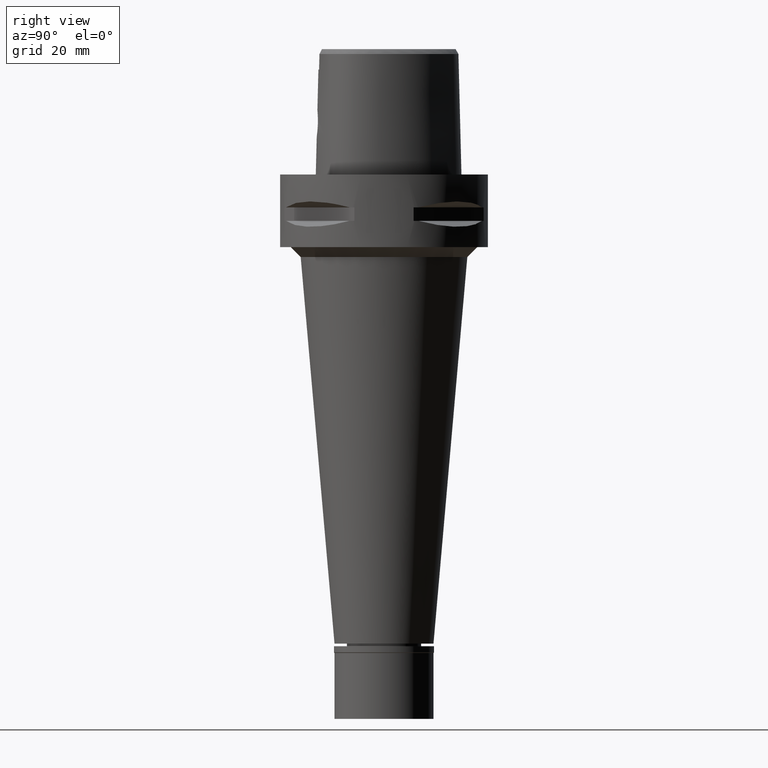
[diagram: clean part render]
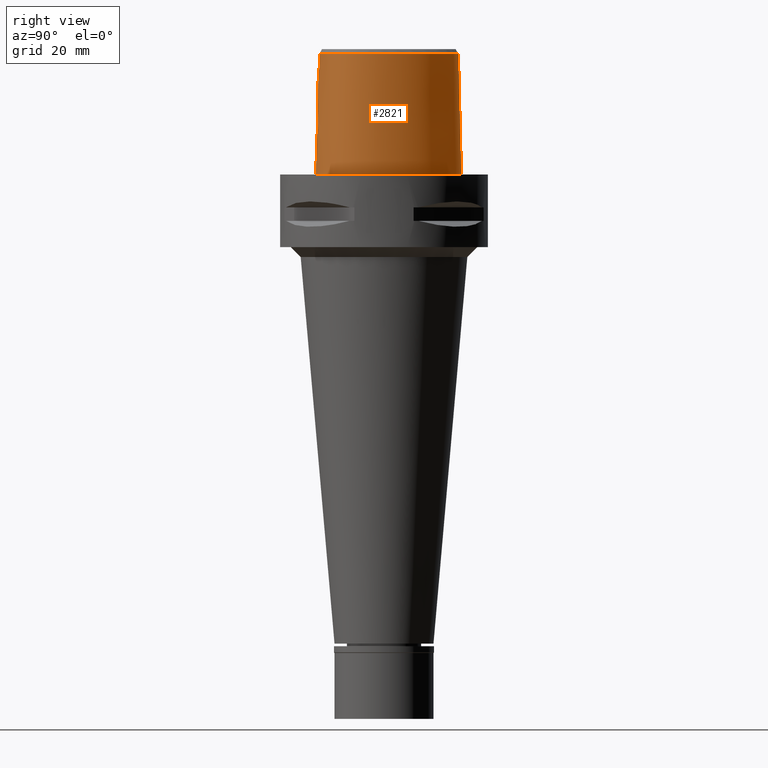
[diagram: same view with one face highlighted and labeled with its STEP entity id]
A machine part, right view. The second image highlights one B-rep face of the part: STEP entity #2821.
In plain terms, the highlighted face is a freeform B-spline surface patch.
Its self-contained STEP definition (entity closure, byte-faithful):
#28 = CARTESIAN_POINT ( 'NONE',  ( 3.346839698137018093, -20.07044986577229650, 17.78445641054263859 ) ) ;
#47 = CARTESIAN_POINT ( 'NONE',  ( 2.360818685576765663, -20.12553152717674010, 18.79091723954073601 ) ) ;
#85 = CARTESIAN_POINT ( 'NONE',  ( 2.041042029990999821E-08, -19.88004246002000031, 31.80000004972000127 ) ) ;
#132 = CARTESIAN_POINT ( 'NONE',  ( 21.31039837231000078, -4.105938496789999448, 37.25231677973999922 ) ) ;
#160 = CARTESIAN_POINT ( 'NONE',  ( 18.35112157715999714, -13.96357039244000120, 11.93048053729999936 ) ) ;
#190 = CARTESIAN_POINT ( 'NONE',  ( 20.76670354688000231, 4.663413653178999141, -0.7304375839165999640 ) ) ;
#210 = CARTESIAN_POINT ( 'NONE',  ( 3.671249151389730514, -19.60525176641679579, 34.94790639287000289 ) ) ;
#213 = CARTESIAN_POINT ( 'NONE',  ( 20.65947761822000217, -8.729764392869000744, 37.25231677973999922 ) ) ;
#236 = CARTESIAN_POINT ( 'NONE',  ( 0.5662264631355999889, 22.56729423624999953, 37.25231677973999922 ) ) ;
#245 = EDGE_CURVE ( 'NONE', #2196, #4910, #4012, .T. ) ;
#264 = CARTESIAN_POINT ( 'NONE',  ( 7.300578979383329781, -19.07170738130555421, 36.52186680739951896 ) ) ;
#274 = CARTESIAN_POINT ( 'NONE',  ( 2.564517726975846568, 23.29328124999400629, 2.743031496388326218E-14 ) ) ;
#284 = CARTESIAN_POINT ( 'NONE',  ( 2.282426779291145458, -20.29697268062908577, 12.15178042133221048 ) ) ;
#286 = CARTESIAN_POINT ( 'NONE',  ( 4.868968453709000777, 21.95285545618000000, 24.59139865852000284 ) ) ;
#296 = CARTESIAN_POINT ( 'NONE',  ( 16.95889172594134564, -15.67838867187557028, 2.743031496388326218E-14 ) ) ;
#305 = EDGE_CURVE ( 'NONE', #4311, #4441, #1322, .T. ) ;
#308 = CARTESIAN_POINT ( 'NONE',  ( 3.047166273135561099, -20.22275119218791062, 12.81895386053285613 ) ) ;
#309 = CARTESIAN_POINT ( 'NONE',  ( 13.93560872661999817, 15.24203796723999993, 24.59139865852000284 ) ) ;
#329 = ORIENTED_EDGE ( 'NONE', *, *, #1233, .F. ) ;
#336 = CARTESIAN_POINT ( 'NONE',  ( 7.099337800077000438, 20.50831394749000225, 37.25231677973999922 ) ) ;
#359 = B_SPLINE_CURVE_WITH_KNOTS ( 'NONE', 3,
 ( #1836, #4971, #5026, #690, #5046, #1817, #1061, #4553, #1860, #1462, #3392, #4947, #1509, #3846, #284, #3463, #4606, #1437, #2272, #3016, #4252, #1037, #2990, #4180, #308, #742, #1086, #669, #2248, #4532, #2628, #2575, #2301, #3822, #3869, #3441, #360, #2227, #5001, #1487, #1106, #2651, #4227, #713, #1891, #4356, #1224, #2705, #2782, #2011, #1586, #2418, #3585, #383, #3539, #873, #28, #3990, #1967, #2323, #845, #4280, #487, #2727, #1177, #820, #2044, #3147, #4378, #4302, #47, #2396, #1153, #767, #4710, #3891, #4330, #1198, #2376, #790, #1939, #2347 ),
 .UNSPECIFIED., .F., .F.,
 ( 4, 2, 2, 1, 1, 1, 2, 2, 2, 2, 2, 1, 1, 2, 2, 2, 2, 1, 1, 2, 2, 2, 2, 1, 2, 2, 2, 2, 1, 1, 1, 2, 2, 2, 2, 2, 1, 1, 2, 2, 2, 1, 2, 2, 2, 2, 2, 4 ),
 ( 0.0000000000000000000, 0.06249999999999680811, 0.09374999999999525380, 0.1093749999999945044, 0.1171874999999941436, 0.1210937499999939770, 0.1230468749999939909, 0.1249999999999940048, 0.1874999999999988620, 0.2187500000000011380, 0.2343750000000023315, 0.2421875000000029143, 0.2460937500000032196, 0.2480468750000034972, 0.2500000000000037748, 0.3125000000000161537, 0.3437500000000225375, 0.3593750000000257017, 0.3671875000000273115, 0.3710937500000281442, 0.3750000000000289213, 0.4375000000000430211, 0.4687500000000503486, 0.4843750000000539568, 0.4921875000000559552, 0.5000000000000579536, 0.5625000000000732747, 0.5937500000000809353, 0.6093750000000843769, 0.6171875000000860423, 0.6210937500000864864, 0.6230468750000863754, 0.6250000000000862643, 0.6875000000000813793, 0.7187500000000788258, 0.7343750000000773825, 0.7421875000000767164, 0.7460937500000764944, 0.7480468750000761613, 0.7500000000000758282, 0.7812500000000663913, 0.7968750000000615064, 0.8046875000000591749, 0.8125000000000567324, 0.8437500000000472955, 0.8593750000000425215, 0.8750000000000376366, 1.000000000000000000 ),
 .UNSPECIFIED. ) ;
#360 = CARTESIAN_POINT ( 'NONE',  ( 4.002668943114965572, -20.07400334792053087, 14.86854796123505729 ) ) ;
#383 = CARTESIAN_POINT ( 'NONE',  ( 3.745542813155543715, -20.04795422077785005, 17.04060065017903014 ) ) ;
#396 = EDGE_CURVE ( 'NONE', #4910, #4441, #1459, .T. ) ;
#463 = CARTESIAN_POINT ( 'NONE',  ( -0.6779734145187998884, -20.37023488104000180, 11.93048053729999936 ) ) ;
#487 = CARTESIAN_POINT ( 'NONE',  ( 2.915472835977094945, -20.09569895789859473, 18.31126718064890113 ) ) ;
#523 = CARTESIAN_POINT ( 'NONE',  ( 20.46725048685000203, 4.555493664739000081, 11.93048053729999936 ) ) ;
#546 = CARTESIAN_POINT ( 'NONE',  ( 21.26836746628999819, -8.910752260624999366, 11.93048053729999936 ) ) ;
#553 = VECTOR ( 'NONE', #948, 1000.000000000000114 ) ;
#573 = B_SPLINE_SURFACE_WITH_KNOTS ( 'NONE', 3, 3, ( 
 ( #4362, #463, #2022, #1643 ),
 ( #3647, #3341, #3267, #3751 ),
 ( #2482, #1668, #2181, #600 ),
 ( #3320, #3296, #4080, #4112 ),
 ( #2839, #1017, #2870, #1312 ),
 ( #624, #2099, #4511, #4436 ),
 ( #4483, #1283, #4408, #3674 ),
 ( #4459, #160, #961, #939 ),
 ( #1746, #3237, #4135, #4052 ),
 ( #2158, #911, #1720, #1364 ),
 ( #4900, #1769, #4854, #992 ),
 ( #1391, #546, #3730, #213 ),
 ( #1340, #2943, #574, #2556 ),
 ( #2133, #4029, #2459, #132 ),
 ( #4798, #2078, #2895, #2505 ),
 ( #190, #523, #1692, #3705 ),
 ( #4877, #4826, #2915, #2533 ),
 ( #4555, #2577, #309, #744 ),
 ( #2604, #1063, #2653, #4535 ),
 ( #5003, #1088, #1893, #336 ),
 ( #4608, #1818, #286, #2303 ),
 ( #3069, #4182, #1795, #4255 ),
 ( #3394, #1837, #3824, #236 ),
 ( #4950, #647, #4157, #671 ),
 ( #3370, #1489, #692, #715 ) ),
 .UNSPECIFIED., .F., .F., .F.,
 ( 4, 1, 1, 1, 1, 1, 1, 1, 1, 1, 1, 1, 1, 1, 1, 1, 1, 1, 1, 1, 1, 1, 4 ),
 ( 4, 4 ),
 ( -0.008985960173571999957, 0.0000000000000000000, 0.08333333333337000770, 0.1666666666667000196, 0.2083333333333000081, 0.2500000000000000000, 0.2916666666666999919, 0.3124999999998999689, 0.3333333333332000326, 0.3541666666666000163, 0.3749999999998999689, 0.4166666666666000163, 0.4583333333332000326, 0.4999999999998999689, 0.5833333333331000015, 0.6666666666664999852, 0.7499999999998000488, 0.8333333333329999704, 0.8749999999997000177, 0.9166666666664000651, 0.9583333333329999704, 1.000000000000000000, 1.011710456763000199 ),
 ( 3.722089469971000116E-09, 0.9999998101735000366 ),
 .UNSPECIFIED. ) ;
#574 = CARTESIAN_POINT ( 'NONE',  ( 21.44619304418999661, -6.759806566834000385, 24.59139865852000284 ) ) ;
#600 = CARTESIAN_POINT ( 'NONE',  ( 1.836480386888999838, -19.76356528378999755, 37.25231677973999922 ) ) ;
#624 = CARTESIAN_POINT ( 'NONE',  ( 14.68244497000999971, -17.23001772821000088, -0.7304375839165999640 ) ) ;
#647 = CARTESIAN_POINT ( 'NONE',  ( -0.4685451983312999835, 23.16976078516999848, 11.93048053729999936 ) ) ;
#669 = CARTESIAN_POINT ( 'NONE',  ( 3.507024072564136841, -20.16249844635295929, 13.46998661760523319 ) ) ;
#671 = CARTESIAN_POINT ( 'NONE',  ( -0.4431573443641999566, 22.53713883456000033, 37.25231677973999922 ) ) ;
#690 = CARTESIAN_POINT ( 'NONE',  ( 0.8992242105118642970, -20.37493864171640112, 11.54888304297134027 ) ) ;
#692 = CARTESIAN_POINT ( 'NONE',  ( -0.6834384128307998685, 22.83968701273000335, 24.59139865852000284 ) ) ;
#713 = CARTESIAN_POINT ( 'NONE',  ( 4.050056915598087670, -20.04604162830171532, 15.75352367833780143 ) ) ;
#715 = CARTESIAN_POINT ( 'NONE',  ( -0.6642815369332000230, 22.52377652680999631, 37.25231677973999922 ) ) ;
#742 = CARTESIAN_POINT ( 'NONE',  ( 3.217746676397107208, -20.20246117936812880, 13.02641545331656481 ) ) ;
#744 = CARTESIAN_POINT ( 'NONE',  ( 13.69241983082999958, 15.03666395037999948, 37.25231677973999922 ) ) ;
#767 = CARTESIAN_POINT ( 'NONE',  ( 2.145109563004964581, -20.13623476436783832, 18.93764899034225735 ) ) ;
#790 = CARTESIAN_POINT ( 'NONE',  ( 1.028316776408453537, -20.17741541788669934, 19.45785258273985008 ) ) ;
#820 = CARTESIAN_POINT ( 'NONE',  ( 2.871827064480840797, -20.09820085661024791, 18.35572725119102344 ) ) ;
#845 = CARTESIAN_POINT ( 'NONE',  ( 3.003300070330046090, -20.09063219836847480, 18.21738618656902986 ) ) ;
#873 = CARTESIAN_POINT ( 'NONE',  ( 3.560199545960235135, -20.05783334522597272, 17.44879127146176501 ) ) ;
#911 = CARTESIAN_POINT ( 'NONE',  ( 20.09084477997999940, -11.59945464139999949, 11.93048053729999936 ) ) ;
#920 = B_SPLINE_CURVE_WITH_KNOTS ( 'NONE', 3,
 ( #85, #2178, #1647, #1791 ),
 .UNSPECIFIED., .F., .F.,
 ( 4, 4 ),
 ( 0.0000000000000000000, 1.000000000000000000 ),
 .UNSPECIFIED. ) ;
#937 = CARTESIAN_POINT ( 'NONE',  ( 3.796779495581999851E-11, 23.47499999999000053, 6.972200594645999482E-14 ) ) ;
#939 = CARTESIAN_POINT ( 'NONE',  ( 17.88993660323999890, -13.52675024961000005, 37.25231677973999922 ) ) ;
#948 = DIRECTION ( 'NONE',  ( 1.535575874124960494E-12, 0.02499051290971940689, -0.9996876883629751687 ) ) ;
#961 = CARTESIAN_POINT ( 'NONE',  ( 18.12052909020000158, -13.74516032102000018, 24.59139865852000284 ) ) ;
#982 = ORIENTED_EDGE ( 'NONE', *, *, #2867, .T. ) ;
#992 = CARTESIAN_POINT ( 'NONE',  ( 20.07948506990999959, -10.22500070539999939, 37.25231677973999922 ) ) ;
#999 = CARTESIAN_POINT ( 'NONE',  ( 2.041042029990999821E-08, -19.88004246002000031, 31.80000004972000127 ) ) ;
#1002 = CARTESIAN_POINT ( 'NONE',  ( 14.67337964420000951, -17.21410156249884338, 2.743031496388326218E-14 ) ) ;
#1017 = CARTESIAN_POINT ( 'NONE',  ( 11.13012657159999819, -18.61140120454999902, 11.93048053729999936 ) ) ;
#1037 = CARTESIAN_POINT ( 'NONE',  ( 2.830086815859693239, -20.24589955386399964, 12.60289630791792703 ) ) ;
#1049 = CARTESIAN_POINT ( 'NONE',  ( 20.74942740880135617, 4.657187499999767333, 2.743031496388326218E-14 ) ) ;
#1061 = CARTESIAN_POINT ( 'NONE',  ( 1.319918021587722201, -20.35862286549530964, 11.67005492354040719 ) ) ;
#1063 = CARTESIAN_POINT ( 'NONE',  ( 10.55288408566999969, 18.94467590724000061, 11.93048053729999936 ) ) ;
#1086 = CARTESIAN_POINT ( 'NONE',  ( 3.438614496833577228, -20.17221373686729535, 13.35618706787884946 ) ) ;
#1088 = CARTESIAN_POINT ( 'NONE',  ( 7.420053159321999381, 21.05635748971999988, 11.93048053729999936 ) ) ;
#1098 = CARTESIAN_POINT ( 'NONE',  ( 14.40795638957730418, 15.64093750000672678, 2.743031496388326218E-14 ) ) ;
#1106 = CARTESIAN_POINT ( 'NONE',  ( 4.048214080092304101, -20.05577732092616827, 15.37582243512925650 ) ) ;
#1107 = CARTESIAN_POINT ( 'NONE',  ( 7.108589361577019261, 20.52412316394742930, 36.52186680739951896 ) ) ;
#1128 = CARTESIAN_POINT ( 'NONE',  ( 19.55745538001142592, -11.29150212657597763, 36.52186680739951896 ) ) ;
#1153 = CARTESIAN_POINT ( 'NONE',  ( 2.278271780665460433, -20.12965837756856047, 18.84858243060470073 ) ) ;
#1175 = EDGE_CURVE ( 'NONE', #3244, #2658, #920, .T. ) ;
#1177 = CARTESIAN_POINT ( 'NONE',  ( 2.880252252186726203, -20.09771858834476532, 18.34723526985665387 ) ) ;
#1198 = CARTESIAN_POINT ( 'NONE',  ( 1.676170890441996519, -20.15531313274218306, 19.18748000605743087 ) ) ;
#1224 = CARTESIAN_POINT ( 'NONE',  ( 3.918450559639469866, -20.04172061130668325, 16.53268210946603389 ) ) ;
#1233 = EDGE_CURVE ( 'NONE', #2265, #2290, #4449, .T. ) ;
#1257 = CARTESIAN_POINT ( 'NONE',  ( 0.0000000000000000000, -20.18628283968999781, 19.55000000000000071 ) ) ;
#1266 = CARTESIAN_POINT ( 'NONE',  ( 2.041042029990999821E-08, -19.88004246002000031, 31.80000004972000127 ) ) ;
#1283 = CARTESIAN_POINT ( 'NONE',  ( 16.77374385919000233, -15.44292476793000191, 11.93048053729999936 ) ) ;
#1291 = ORIENTED_EDGE ( 'NONE', *, *, #305, .F. ) ;
#1312 = CARTESIAN_POINT ( 'NONE',  ( 10.91263711138000048, -18.01320809789000066, 37.25231677973999922 ) ) ;
#1322 = LINE ( 'NONE', #2880, #553 ) ;
#1335 = EDGE_CURVE ( 'NONE', #2196, #2658, #359, .T. ) ;
#1340 = CARTESIAN_POINT ( 'NONE',  ( 22.07548128874000071, -6.850245535142999387, -0.7304375839165999640 ) ) ;
#1364 = CARTESIAN_POINT ( 'NONE',  ( 19.54161185382000099, -11.28235486243000096, 37.25231677973999922 ) ) ;
#1391 = CARTESIAN_POINT ( 'NONE',  ( 21.57281239033000020, -9.001246194503000453, -0.7304375839165999640 ) ) ;
#1407 = ORIENTED_EDGE ( 'NONE', *, *, #1335, .F. ) ;
#1437 = CARTESIAN_POINT ( 'NONE',  ( 2.628069135184419647, -20.26622718584413718, 12.41751376643670568 ) ) ;
#1439 = CARTESIAN_POINT ( 'NONE',  ( 4.467522181835986927, -19.48130276147212570, 36.52186680739951896 ) ) ;
#1459 = B_SPLINE_CURVE_WITH_KNOTS ( 'NONE', 3,
 ( #4196, #4494, #4959, #1476, #1002, #296, #4145, #2543, #4597, #4121, #2564, #2954, #2239, #1846, #1049, #2191, #1098, #3792, #3429, #4988, #274, #2927, #1778 ),
 .UNSPECIFIED., .F., .F.,
 ( 4, 1, 1, 1, 1, 1, 1, 1, 1, 1, 1, 1, 1, 1, 1, 1, 1, 1, 1, 1, 4 ),
 ( 0.0000000000000000000, 0.08333333333337000770, 0.1666666666667000196, 0.2083333333333000081, 0.2500000000000000000, 0.2916666666666999919, 0.3124999999998999689, 0.3333333333332000326, 0.3541666666666000163, 0.3749999999998999689, 0.4166666666666000163, 0.4583333333332000326, 0.4999999999998999689, 0.5833333333331000015, 0.6666666666664999852, 0.7499999999998000488, 0.8333333333329999704, 0.8749999999997000177, 0.9166666666664000651, 0.9583333333329999704, 1.000000000000000000 ),
 .UNSPECIFIED. ) ;
#1462 = CARTESIAN_POINT ( 'NONE',  ( 1.512241740947312119, -20.34898939911309412, 11.74291348788425182 ) ) ;
#1466 = CARTESIAN_POINT ( 'NONE',  ( 13.70645019738812920, 15.04851265230656132, 36.52186680739951896 ) ) ;
#1476 = CARTESIAN_POINT ( 'NONE',  ( 11.23259756728057468, -18.89324218749557005, 2.743031496388326218E-14 ) ) ;
#1487 = CARTESIAN_POINT ( 'NONE',  ( 4.045002722263134842, -20.05852232572153326, 15.28257568076945461 ) ) ;
#1489 = CARTESIAN_POINT ( 'NONE',  ( -0.7025952887284000470, 23.15559749864999972, 11.93048053729999936 ) ) ;
#1509 = CARTESIAN_POINT ( 'NONE',  ( 1.734698794257270249, -20.33694537581526518, 11.83451168615765603 ) ) ;
#1511 = CARTESIAN_POINT ( 'NONE',  ( 21.07429999882511851, -0.4408303635841807622, 36.52186680739951896 ) ) ;
#1586 = CARTESIAN_POINT ( 'NONE',  ( 3.765664028142179820, -20.04702608754462290, 16.99090190460270478 ) ) ;
#1643 = CARTESIAN_POINT ( 'NONE',  ( -0.6657939564084999207, -19.73734232009000067, 37.25231677973999922 ) ) ;
#1647 = CARTESIAN_POINT ( 'NONE',  ( 6.841575544673787854E-09, -20.08420636276188986, 23.63333344114113999 ) ) ;
#1668 = CARTESIAN_POINT ( 'NONE',  ( 1.870063864393000097, -20.39691455659999875, 11.93048053729999936 ) ) ;
#1692 = CARTESIAN_POINT ( 'NONE',  ( 20.16779742682999910, 4.447573676299999335, 24.59139865852000284 ) ) ;
#1720 = CARTESIAN_POINT ( 'NONE',  ( 19.81622831690000197, -11.44090475190999889, 24.59139865852000284 ) ) ;
#1746 = CARTESIAN_POINT ( 'NONE',  ( 19.66427014433000053, -12.83600704532999970, -0.7304375839165999640 ) ) ;
#1769 = CARTESIAN_POINT ( 'NONE',  ( 20.65879052761999901, -10.48283621447000158, 11.93048053729999936 ) ) ;
#1778 = CARTESIAN_POINT ( 'NONE',  ( 3.796779495581999851E-11, 23.47499999999000053, 6.972200594645999482E-14 ) ) ;
#1791 = CARTESIAN_POINT ( 'NONE',  ( 0.0000000000000000000, -20.18628283968999781, 19.55000000000000071 ) ) ;
#1795 = CARTESIAN_POINT ( 'NONE',  ( 2.438150623170999953, 22.68791648779999903, 24.59139865852000284 ) ) ;
#1813 = ORIENTED_EDGE ( 'NONE', *, *, #3438, .T. ) ;
#1817 = CARTESIAN_POINT ( 'NONE',  ( 1.223097168518407996, -20.36283687392326414, 11.63851210756520160 ) ) ;
#1818 = CARTESIAN_POINT ( 'NONE',  ( 4.987110684460000165, 22.24795284817000152, 11.93048053729999936 ) ) ;
#1836 = CARTESIAN_POINT ( 'NONE',  ( -6.936546298697000348E-13, -20.38876923348000147, 11.44999999999999929 ) ) ;
#1837 = CARTESIAN_POINT ( 'NONE',  ( 0.5990982036562000346, 23.20165472884999858, 11.93048053729999936 ) ) ;
#1846 = CARTESIAN_POINT ( 'NONE',  ( 21.97832647786634297, -0.2810937499999570099, 2.743031496388326218E-14 ) ) ;
#1860 = CARTESIAN_POINT ( 'NONE',  ( 1.488283991415337182, -20.35025562760707629, 11.73330004244571612 ) ) ;
#1863 = CARTESIAN_POINT ( 'NONE',  ( 19.88562079788673387, 4.345879946636513225, 36.52186680739951896 ) ) ;
#1874 = B_SPLINE_CURVE_WITH_KNOTS ( 'NONE', 3,
 ( #3464, #2250, #3848, #3416, #1107, #4973, #1466, #2630, #1863, #1511, #4633, #5027, #2970, #3443, #1128, #2205, #2678, #4584, #4205, #3779, #264, #1439, #2992 ),
 .UNSPECIFIED., .F., .F.,
 ( 4, 1, 1, 1, 1, 1, 1, 1, 1, 1, 1, 1, 1, 1, 1, 1, 1, 1, 1, 1, 4 ),
 ( 0.0000000000000000000, 0.04382683003322015297, 0.08765366006601943427, 0.1314804900989240688, 0.1753073201318286756, 0.2629609801974273631, 0.3506146402631313830, 0.4382683003289404855, 0.5259219603945393118, 0.5697487904274438630, 0.6135756204602431652, 0.6574024504931478274, 0.6793158655095474785, 0.7012292805260523787, 0.7231426955424521408, 0.7450561105587465427, 0.7888829405916510940, 0.8327097706245557562, 0.8765366006573550584, 0.9641902607230905531, 1.000000000000000000 ),
 .UNSPECIFIED. ) ;
#1891 = CARTESIAN_POINT ( 'NONE',  ( 4.026066118139421057, -20.04247127186134492, 16.01314433202412246 ) ) ;
#1893 = CARTESIAN_POINT ( 'NONE',  ( 7.259695479700000398, 20.78233571859999884, 24.59139865852000284 ) ) ;
#1939 = CARTESIAN_POINT ( 'NONE',  ( 0.4954876483524821573, -20.18628283969000492, 19.54999999999999716 ) ) ;
#1967 = CARTESIAN_POINT ( 'NONE',  ( 3.128908175272120396, -20.08331652991464011, 18.07252174272647949 ) ) ;
#2003 = ORIENTED_EDGE ( 'NONE', *, *, #1175, .T. ) ;
#2011 = CARTESIAN_POINT ( 'NONE',  ( 3.787481123649921066, -20.04605982308304135, 16.93510773912660028 ) ) ;
#2022 = CARTESIAN_POINT ( 'NONE',  ( -0.6718836854636000000, -20.05378860056999812, 24.59139865852000284 ) ) ;
#2044 = CARTESIAN_POINT ( 'NONE',  ( 2.772180003756187894, -20.10389984255201767, 18.45552640414263479 ) ) ;
#2078 = CARTESIAN_POINT ( 'NONE',  ( 21.68301106120999577, -0.3332743948040999826, 11.93048053729999936 ) ) ;
#2099 = CARTESIAN_POINT ( 'NONE',  ( 14.52531265597000143, -16.95413752254999906, 11.93048053729999936 ) ) ;
#2133 = CARTESIAN_POINT ( 'NONE',  ( 22.26285556298000046, -4.100361500063000264, -0.7304375839165999640 ) ) ;
#2158 = CARTESIAN_POINT ( 'NONE',  ( 20.36546124305000305, -11.75800453087999919, -0.7304375839165999640 ) ) ;
#2164 = CARTESIAN_POINT ( 'NONE',  ( 3.736696120837999402, -19.67778323291999953, 31.80000004972999861 ) ) ;
#2178 = CARTESIAN_POINT ( 'NONE',  ( 6.821607014565307510E-09, -19.98212988583391692, 27.71666688228243203 ) ) ;
#2181 = CARTESIAN_POINT ( 'NONE',  ( 1.853272125641000079, -20.08023992018999948, 24.59139865852000284 ) ) ;
#2191 = CARTESIAN_POINT ( 'NONE',  ( 18.06826688526363611, 10.43171875000037119, 2.743031496388326218E-14 ) ) ;
#2196 = VERTEX_POINT ( 'NONE', #4033 ) ;
#2205 = CARTESIAN_POINT ( 'NONE',  ( 18.90964962508268954, -12.28759713487141347, 36.52186680739951896 ) ) ;
#2227 = CARTESIAN_POINT ( 'NONE',  ( 4.020733927300638832, -20.06862206084555922, 14.99753541347952002 ) ) ;
#2239 = CARTESIAN_POINT ( 'NONE',  ( 22.24453907854422852, -4.100468750000057838, 2.743031496388326218E-14 ) ) ;
#2248 = CARTESIAN_POINT ( 'NONE',  ( 3.601204257517720997, -20.14847629606039092, 13.64574922402665003 ) ) ;
#2250 = CARTESIAN_POINT ( 'NONE',  ( 0.7901461619506447986, 22.56201467849432873, 36.52186680739951896 ) ) ;
#2265 = VERTEX_POINT ( 'NONE', #4462 ) ;
#2272 = CARTESIAN_POINT ( 'NONE',  ( 2.714805267639514685, -20.25771215066832198, 12.49436786205451000 ) ) ;
#2290 = VERTEX_POINT ( 'NONE', #4055 ) ;
#2301 = CARTESIAN_POINT ( 'NONE',  ( 3.728050960354355237, -20.12836678376847033, 13.91746580426512736 ) ) ;
#2303 = CARTESIAN_POINT ( 'NONE',  ( 4.750826222957999612, 21.65775806418999849, 37.25231677973999922 ) ) ;
#2311 = B_SPLINE_CURVE_WITH_KNOTS ( 'NONE', 3,
 ( #2164, #3326, #2490, #999 ),
 .UNSPECIFIED., .F., .F.,
 ( 4, 4 ),
 ( 0.0000000000000000000, 1.000000000000000000 ),
 .UNSPECIFIED. ) ;
#2323 = CARTESIAN_POINT ( 'NONE',  ( 3.080402072178444861, -20.08615456365791729, 18.13051688291887942 ) ) ;
#2347 = CARTESIAN_POINT ( 'NONE',  ( 0.0000000000000000000, -20.18628283968999781, 19.55000000000000071 ) ) ;
#2376 = CARTESIAN_POINT ( 'NONE',  ( 1.615797869211351045, -20.15746371882925558, 19.21438957845422024 ) ) ;
#2396 = CARTESIAN_POINT ( 'NONE',  ( 2.306577398820751412, -20.12825059843537190, 18.82915933036016298 ) ) ;
#2404 = CARTESIAN_POINT ( 'NONE',  ( 3.637738219117000238, -19.56971420299000286, 36.52185956443999970 ) ) ;
#2418 = CARTESIAN_POINT ( 'NONE',  ( 3.756069937840027961, -20.04746516202720841, 17.01476473572080295 ) ) ;
#2459 = CARTESIAN_POINT ( 'NONE',  ( 21.62788410254000127, -4.104079497880999128, 24.59139865852000284 ) ) ;
#2482 = CARTESIAN_POINT ( 'NONE',  ( 1.886855603145999982, -20.71358919300000068, -0.7304375839165999640 ) ) ;
#2490 = CARTESIAN_POINT ( 'NONE',  ( 1.251533272183239731, -19.88005341395179926, 31.80000012137770682 ) ) ;
#2505 = CARTESIAN_POINT ( 'NONE',  ( 21.05621915645999920, -0.4440251511230999815, 37.25231677973999922 ) ) ;
#2533 = CARTESIAN_POINT ( 'NONE',  ( 17.25769859809999929, 9.963736582580001055, 37.25231677973999922 ) ) ;
#2543 = CARTESIAN_POINT ( 'NONE',  ( 19.64947365863980266, -12.82525390625480810, 2.743031496388326218E-14 ) ) ;
#2556 = CARTESIAN_POINT ( 'NONE',  ( 21.13154892192000034, -6.714587082680000485, 37.25231677973999922 ) ) ;
#2564 = CARTESIAN_POINT ( 'NONE',  ( 21.55524826009692063, -8.996025390625421281, 2.743031496388326218E-14 ) ) ;
#2575 = CARTESIAN_POINT ( 'NONE',  ( 3.714884036183550897, -20.13054316305255043, 13.88679975161858771 ) ) ;
#2577 = CARTESIAN_POINT ( 'NONE',  ( 14.17879762239999941, 15.44741198411000127, 11.93048053729999936 ) ) ;
#2604 = CARTESIAN_POINT ( 'NONE',  ( 10.75753573659999951, 19.18839675567999947, -0.7304375839165999640 ) ) ;
#2621 = EDGE_LOOP ( 'NONE', ( #1291, #982, #329, #1813, #2003, #1407, #2900, #4127 ) ) ;
#2628 = CARTESIAN_POINT ( 'NONE',  ( 3.694855246837426943, -20.13382494402488021, 13.84093642423405512 ) ) ;
#2630 = CARTESIAN_POINT ( 'NONE',  ( 17.27359236348501881, 9.972912859139182018, 36.52186680739951896 ) ) ;
#2651 = CARTESIAN_POINT ( 'NONE',  ( 4.049638794384611273, -20.05404294443376756, 15.43768675189062201 ) ) ;
#2653 = CARTESIAN_POINT ( 'NONE',  ( 10.34823243473999987, 18.70095505880999909, 24.59139865852000284 ) ) ;
#2658 = VERTEX_POINT ( 'NONE', #1257 ) ;
#2666 = VECTOR ( 'NONE', #2800, 1000.000000000000114 ) ;
#2678 = CARTESIAN_POINT ( 'NONE',  ( 17.90324024157879634, -13.53935104436224535, 36.52186680739951896 ) ) ;
#2705 = CARTESIAN_POINT ( 'NONE',  ( 3.860417298872394376, -20.04330287886046946, 16.72646853219081819 ) ) ;
#2727 = CARTESIAN_POINT ( 'NONE',  ( 2.894397137079437687, -20.09690797886509017, 18.33285490821691965 ) ) ;
#2782 = CARTESIAN_POINT ( 'NONE',  ( 3.828843160387038314, -20.04436026481759825, 16.82309517697779810 ) ) ;
#2789 = FACE_OUTER_BOUND ( 'NONE', #2621, .T. ) ;
#2800 = DIRECTION ( 'NONE',  ( -4.234890442307874212E-13, -0.02499051295389925070, -0.9996876883618708298 ) ) ;
#2821 = ADVANCED_FACE ( 'NONE', ( #2789 ), #573, .T. ) ;
#2839 = CARTESIAN_POINT ( 'NONE',  ( 11.23887130171000059, -18.91049775788000176, -0.7304375839165999640 ) ) ;
#2867 = EDGE_CURVE ( 'NONE', #4311, #2290, #1874, .T. ) ;
#2870 = CARTESIAN_POINT ( 'NONE',  ( 11.02138184149000111, -18.31230465121999984, 24.59139865852000284 ) ) ;
#2880 = CARTESIAN_POINT ( 'NONE',  ( -1.813182315526000312E-11, 22.56201468012000078, 36.52186680743999858 ) ) ;
#2895 = CARTESIAN_POINT ( 'NONE',  ( 21.36961510884000148, -0.3886497729635999820, 24.59139865852000284 ) ) ;
#2900 = ORIENTED_EDGE ( 'NONE', *, *, #245, .T. ) ;
#2915 = CARTESIAN_POINT ( 'NONE',  ( 17.53318585909999783, 10.12278934536000108, 24.59139865852000284 ) ) ;
#2927 = CARTESIAN_POINT ( 'NONE',  ( 0.8548392423474051594, 23.47500000000270504, 2.743031496388326218E-14 ) ) ;
#2943 = CARTESIAN_POINT ( 'NONE',  ( 21.76083716647000088, -6.805026050989000375, 11.93048053729999936 ) ) ;
#2954 = CARTESIAN_POINT ( 'NONE',  ( 22.05732874322441006, -6.847636718749498641, 2.743031496388326218E-14 ) ) ;
#2970 = CARTESIAN_POINT ( 'NONE',  ( 20.67704204634503284, -8.734985285292859558, 36.52186680739951896 ) ) ;
#2990 = CARTESIAN_POINT ( 'NONE',  ( 2.844443223519995456, -20.24438370416207889, 12.61699047241434890 ) ) ;
#2992 = CARTESIAN_POINT ( 'NONE',  ( 3.637738219117000238, -19.56971420299000286, 36.52185956443999970 ) ) ;
#3016 = CARTESIAN_POINT ( 'NONE',  ( 2.758139611129263091, -20.25337176693246732, 12.53387256028085517 ) ) ;
#3069 = CARTESIAN_POINT ( 'NONE',  ( 2.568271205287000036, 23.31126238154999797, -0.7304375839165999640 ) ) ;
#3147 = CARTESIAN_POINT ( 'NONE',  ( 2.673773366373647598, -20.10928484861024401, 18.54484060076604734 ) ) ;
#3237 = CARTESIAN_POINT ( 'NONE',  ( 19.40779772570000006, -12.64961930135999957, 11.93048053729999936 ) ) ;
#3244 = VERTEX_POINT ( 'NONE', #1266 ) ;
#3267 = CARTESIAN_POINT ( 'NONE',  ( -0.4479923902763999766, -20.05810148197999965, 24.59139865852000284 ) ) ;
#3293 = CARTESIAN_POINT ( 'NONE',  ( -1.813182315526000312E-11, 22.56201468012000078, 36.52186680743999858 ) ) ;
#3296 = CARTESIAN_POINT ( 'NONE',  ( 6.288476587230999115, -20.00290576080999827, 11.93048053729999936 ) ) ;
#3320 = CARTESIAN_POINT ( 'NONE',  ( 6.344715576272000668, -20.31619964730000305, -0.7304375839165999640 ) ) ;
#3326 = CARTESIAN_POINT ( 'NONE',  ( 2.503154195451996245, -19.81241979350612326, 31.80000012137770682 ) ) ;
#3341 = CARTESIAN_POINT ( 'NONE',  ( -0.4520500676067000234, -20.37458451789000335, 11.93048053729999936 ) ) ;
#3370 = CARTESIAN_POINT ( 'NONE',  ( -0.7217521646260000034, 23.47150798458000054, -0.7304375839165999640 ) ) ;
#3392 = CARTESIAN_POINT ( 'NONE',  ( 1.528203702475598114, -20.34813849356515192, 11.74937770678980264 ) ) ;
#3394 = CARTESIAN_POINT ( 'NONE',  ( 0.6155340739164999464, 23.51883497514999988, -0.7304375839165999640 ) ) ;
#3416 = CARTESIAN_POINT ( 'NONE',  ( 4.757642236485461140, 21.67478320247405321, 36.52186680739951896 ) ) ;
#3429 = CARTESIAN_POINT ( 'NONE',  ( 7.571159434350420270, 21.31457031249671630, 2.743031496388326218E-14 ) ) ;
#3438 = EDGE_CURVE ( 'NONE', #2265, #3244, #2311, .T. ) ;
#3441 = CARTESIAN_POINT ( 'NONE',  ( 3.927835586672352441, -20.09244225005366147, 14.47776275463072437 ) ) ;
#3443 = CARTESIAN_POINT ( 'NONE',  ( 20.09619608768598198, -10.23243839430448432, 36.52186680739951896 ) ) ;
#3463 = CARTESIAN_POINT ( 'NONE',  ( 2.397021025743683253, -20.28738711155108021, 12.23221059366157881 ) ) ;
#3464 = CARTESIAN_POINT ( 'NONE',  ( -1.813182315526000312E-11, 22.56201468012000078, 36.52186680743999858 ) ) ;
#3539 = CARTESIAN_POINT ( 'NONE',  ( 3.664531516593255933, -20.05177522854884486, 17.23667186347703506 ) ) ;
#3585 = CARTESIAN_POINT ( 'NONE',  ( 3.749619629275788846, -20.04776342526934485, 17.03066201961066994 ) ) ;
#3647 = CARTESIAN_POINT ( 'NONE',  ( -0.4561077449369999592, -20.69106755381000085, -0.7304375839165999640 ) ) ;
#3674 = CARTESIAN_POINT ( 'NONE',  ( 16.38077695832999936, -14.94316464526999866, 37.25231677973999922 ) ) ;
#3705 = CARTESIAN_POINT ( 'NONE',  ( 19.86834436680000238, 4.339653687859999387, 37.25231677973999922 ) ) ;
#3726 = CARTESIAN_POINT ( 'NONE',  ( 3.736696120837999402, -19.67778323291999953, 31.80000004972999861 ) ) ;
#3730 = CARTESIAN_POINT ( 'NONE',  ( 20.96392254224999618, -8.820258326747000055, 24.59139865852000284 ) ) ;
#3751 = CARTESIAN_POINT ( 'NONE',  ( -0.4439347129462000163, -19.74161844606000216, 37.25231677973999922 ) ) ;
#3779 = CARTESIAN_POINT ( 'NONE',  ( 10.91891095221369845, -18.03046396093368386, 36.52186680739951896 ) ) ;
#3792 = CARTESIAN_POINT ( 'NONE',  ( 10.74572891058480550, 19.17433593750077847, 2.743031496388326218E-14 ) ) ;
#3822 = CARTESIAN_POINT ( 'NONE',  ( 3.734101483925078124, -20.12735841093752498, 13.93178299878139015 ) ) ;
#3824 = CARTESIAN_POINT ( 'NONE',  ( 0.5826623333959000117, 22.88447448255000083, 24.59139865852000284 ) ) ;
#3846 = CARTESIAN_POINT ( 'NONE',  ( 1.946932004676015460, -20.32307767112847330, 11.93880059974637220 ) ) ;
#3848 = CARTESIAN_POINT ( 'NONE',  ( 2.376843874103301779, 22.39422497744518026, 36.52186680739951896 ) ) ;
#3869 = CARTESIAN_POINT ( 'NONE',  ( 3.850336017801455846, -20.10779490602000408, 14.21200268958511614 ) ) ;
#3891 = CARTESIAN_POINT ( 'NONE',  ( 1.857884076962269537, -20.14843429220476168, 19.09932929553219338 ) ) ;
#3990 = CARTESIAN_POINT ( 'NONE',  ( 3.266229437020721438, -20.07524359687617377, 17.89916302261439540 ) ) ;
#4012 = LINE ( 'NONE', #4037, #2666 ) ;
#4029 = CARTESIAN_POINT ( 'NONE',  ( 21.94536983276000086, -4.102220498972000584, 11.93048053729999936 ) ) ;
#4033 = CARTESIAN_POINT ( 'NONE',  ( -6.936546298697000348E-13, -20.38876923348000147, 11.44999999999999929 ) ) ;
#4037 = CARTESIAN_POINT ( 'NONE',  ( -6.936546298697000348E-13, -20.38876923348000147, 11.44999999999999929 ) ) ;
#4052 = CARTESIAN_POINT ( 'NONE',  ( 18.89485288843999911, -12.27684381342000108, 37.25231677973999922 ) ) ;
#4055 = CARTESIAN_POINT ( 'NONE',  ( 3.637738219117000238, -19.56971420299000286, 36.52185956443999970 ) ) ;
#4080 = CARTESIAN_POINT ( 'NONE',  ( 6.232237598189000138, -19.68961187430999971, 24.59139865852000284 ) ) ;
#4112 = CARTESIAN_POINT ( 'NONE',  ( 6.175998609147999474, -19.37631798780999759, 37.25231677973999922 ) ) ;
#4121 = CARTESIAN_POINT ( 'NONE',  ( 20.93173252212270086, -10.60431640624807414, 2.743031496388326218E-14 ) ) ;
#4127 = ORIENTED_EDGE ( 'NONE', *, *, #396, .T. ) ;
#4135 = CARTESIAN_POINT ( 'NONE',  ( 19.15132530707000313, -12.46323155739000121, 24.59139865852000284 ) ) ;
#4145 = CARTESIAN_POINT ( 'NONE',  ( 18.56841065142019787, -14.16937988280710137, 2.743031496388326218E-14 ) ) ;
#4157 = CARTESIAN_POINT ( 'NONE',  ( -0.4558512713478000133, 22.85344980986000252, 24.59139865852000284 ) ) ;
#4180 = CARTESIAN_POINT ( 'NONE',  ( 2.852894669148333673, -20.24348581819178250, 12.62535896507192490 ) ) ;
#4182 = CARTESIAN_POINT ( 'NONE',  ( 2.503210914228999773, 22.99958943467999717, 11.93048053729999936 ) ) ;
#4196 = CARTESIAN_POINT ( 'NONE',  ( -5.544119042799000852E-12, -20.67499999999999716, 7.264559324463998182E-14 ) ) ;
#4205 = CARTESIAN_POINT ( 'NONE',  ( 14.22011350746042879, -16.41829354688373499, 36.52186680739951896 ) ) ;
#4227 = CARTESIAN_POINT ( 'NONE',  ( 4.049992771143990922, -20.05325330546017426, 15.46728849813523610 ) ) ;
#4252 = CARTESIAN_POINT ( 'NONE',  ( 2.808534909594999185, -20.24816297014837119, 12.58189563908294772 ) ) ;
#4255 = CARTESIAN_POINT ( 'NONE',  ( 2.373090332112999690, 22.37624354092999823, 37.25231677973999922 ) ) ;
#4280 = CARTESIAN_POINT ( 'NONE',  ( 2.963663714774202873, -20.09292616174766977, 18.26078922981426444 ) ) ;
#4286 = CARTESIAN_POINT ( 'NONE',  ( -5.544119042799000852E-12, -20.67499999999999716, 7.264559324463998182E-14 ) ) ;
#4302 = CARTESIAN_POINT ( 'NONE',  ( 2.441475652817581388, -20.12145690552322819, 18.73255419730240945 ) ) ;
#4311 = VERTEX_POINT ( 'NONE', #3293 ) ;
#4330 = CARTESIAN_POINT ( 'NONE',  ( 1.798140377637001297, -20.15076695762397563, 19.12956592877852202 ) ) ;
#4356 = CARTESIAN_POINT ( 'NONE',  ( 3.950314841473462124, -20.04137577208483734, 16.40278404201346873 ) ) ;
#4362 = CARTESIAN_POINT ( 'NONE',  ( -0.6840631435738999677, -20.68668116151999925, -0.7304375839165999640 ) ) ;
#4364 = CARTESIAN_POINT ( 'NONE',  ( 3.704239288984441103, -19.64128042389065598, 33.37395322129999897 ) ) ;
#4378 = CARTESIAN_POINT ( 'NONE',  ( 2.519944104988522060, -20.11739423957299167, 18.67124364917522783 ) ) ;
#4408 = CARTESIAN_POINT ( 'NONE',  ( 16.57726040875999729, -15.19304470660000028, 24.59139865852000284 ) ) ;
#4436 = CARTESIAN_POINT ( 'NONE',  ( 14.21104802790000043, -16.40237711122999897, 37.25231677973999922 ) ) ;
#4441 = VERTEX_POINT ( 'NONE', #937 ) ;
#4449 = B_SPLINE_CURVE_WITH_KNOTS ( 'NONE', 3,
 ( #3726, #4364, #210, #2404 ),
 .UNSPECIFIED., .F., .F.,
 ( 4, 4 ),
 ( 0.0000000000000000000, 1.000000000000000000 ),
 .UNSPECIFIED. ) ;
#4459 = CARTESIAN_POINT ( 'NONE',  ( 18.58171406413000071, -14.18198046384999955, -0.7304375839165999640 ) ) ;
#4462 = CARTESIAN_POINT ( 'NONE',  ( 3.736696120837999402, -19.67778323291999953, 31.80000004972999861 ) ) ;
#4483 = CARTESIAN_POINT ( 'NONE',  ( 16.97022730962000026, -15.69280482925999820, -0.7304375839165999640 ) ) ;
#4494 = CARTESIAN_POINT ( 'NONE',  ( 2.113823673067774855, -20.67499999999642313, 2.743031496388326534E-14 ) ) ;
#4511 = CARTESIAN_POINT ( 'NONE',  ( 14.36818034194000049, -16.67825731688999724, 24.59139865852000284 ) ) ;
#4532 = CARTESIAN_POINT ( 'NONE',  ( 3.646186824048230690, -20.14160291728383356, 13.73489521538706448 ) ) ;
#4535 = CARTESIAN_POINT ( 'NONE',  ( 10.14358078379999917, 18.45723421037000023, 37.25231677973999922 ) ) ;
#4553 = CARTESIAN_POINT ( 'NONE',  ( 1.432283198481785202, -20.35313925196403773, 11.71144805785014320 ) ) ;
#4555 = CARTESIAN_POINT ( 'NONE',  ( 14.42198651818000066, 15.65278600097999906, -0.7304375839165999640 ) ) ;
#4584 = CARTESIAN_POINT ( 'NONE',  ( 16.39211273426329285, -14.95758104715644699, 36.52186680739951896 ) ) ;
#4597 = CARTESIAN_POINT ( 'NONE',  ( 20.34961798556517820, -11.74885742187152360, 2.743031496388326218E-14 ) ) ;
#4606 = CARTESIAN_POINT ( 'NONE',  ( 2.570157103600570814, -20.27168289956678393, 12.36915238101241243 ) ) ;
#4608 = CARTESIAN_POINT ( 'NONE',  ( 5.105252915212000531, 22.54305024016000303, -0.7304375839165999640 ) ) ;
#4633 = CARTESIAN_POINT ( 'NONE',  ( 21.32871516739899320, -4.105831245033953358, 36.52186680739951896 ) ) ;
#4710 = CARTESIAN_POINT ( 'NONE',  ( 2.033286809333374467, -20.14125756236685305, 19.00511957505245419 ) ) ;
#4798 = CARTESIAN_POINT ( 'NONE',  ( 21.99640701358000072, -0.2778990166445999832, -0.7304375839165999640 ) ) ;
#4826 = CARTESIAN_POINT ( 'NONE',  ( 17.80867312009999992, 10.28184210815000021, 11.93048053729999936 ) ) ;
#4854 = CARTESIAN_POINT ( 'NONE',  ( 20.36913779876999797, -10.35391845992999826, 24.59139865852000284 ) ) ;
#4877 = CARTESIAN_POINT ( 'NONE',  ( 18.08416038108999757, 10.44089487092999846, -0.7304375839165999640 ) ) ;
#4900 = CARTESIAN_POINT ( 'NONE',  ( 20.94844325648000094, -10.61175396900999957, -0.7304375839165999640 ) ) ;
#4910 = VERTEX_POINT ( 'NONE', #4286 ) ;
#4947 = CARTESIAN_POINT ( 'NONE',  ( 1.538196023384282407, -20.34760033576342408, 11.75346900688112228 ) ) ;
#4950 = CARTESIAN_POINT ( 'NONE',  ( -0.4812391253148000092, 23.48607176047999801, -0.7304375839165999640 ) ) ;
#4959 = CARTESIAN_POINT ( 'NONE',  ( 6.341471019211279092, -20.29812500000267406, 2.743031496388326218E-14 ) ) ;
#4971 = CARTESIAN_POINT ( 'NONE',  ( 0.2521712344239960824, -20.38876923348000858, 11.44999999999999751 ) ) ;
#4973 = CARTESIAN_POINT ( 'NONE',  ( 10.15538781006280189, 18.47129526702459046, 36.52186680739951896 ) ) ;
#4988 = CARTESIAN_POINT ( 'NONE',  ( 5.098437017284000561, 22.52602539062211306, 2.743031496388326218E-14 ) ) ;
#5001 = CARTESIAN_POINT ( 'NONE',  ( 4.038472190140932838, -20.06169765068718647, 15.18805390983103010 ) ) ;
#5003 = CARTESIAN_POINT ( 'NONE',  ( 7.580410838944000140, 21.33037926083000002, -0.7304375839165999640 ) ) ;
#5026 = CARTESIAN_POINT ( 'NONE',  ( 0.5103796633626155321, -20.38531158553910672, 11.47362071399299488 ) ) ;
#5027 = CARTESIAN_POINT ( 'NONE',  ( 21.14970177530779338, -6.717195943319750562, 36.52186680739951896 ) ) ;
#5046 = CARTESIAN_POINT ( 'NONE',  ( 1.029075032816727298, -20.37061658179028711, 11.58059618244477029 ) ) ;